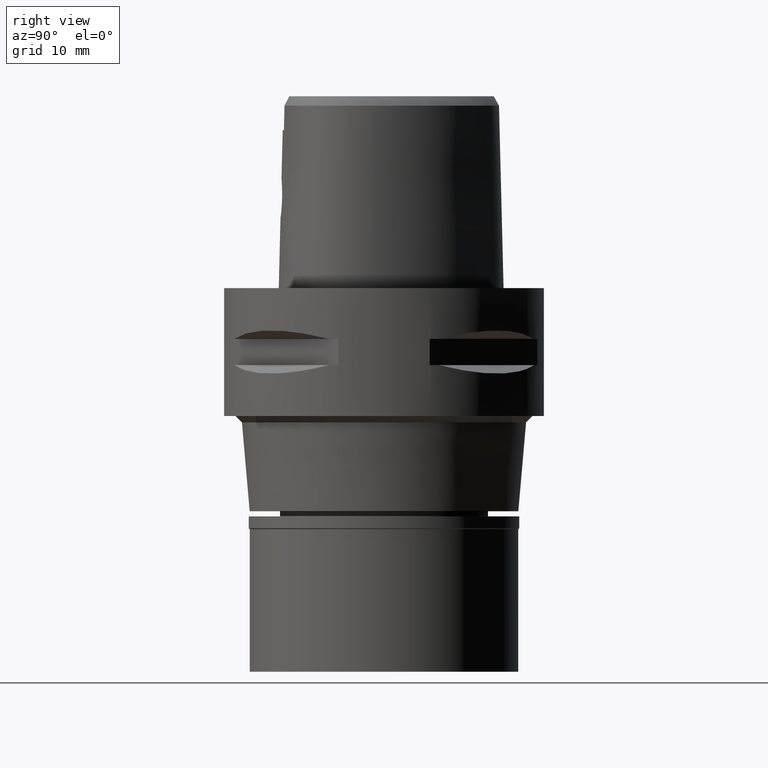
[diagram: clean part render]
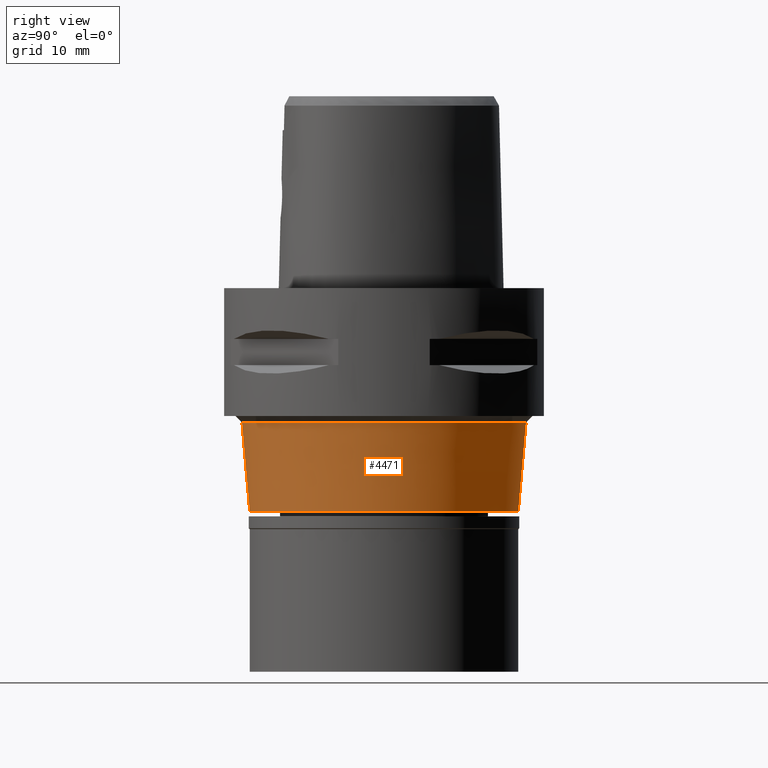
[diagram: same view with one face highlighted and labeled with its STEP entity id]
A machine part, right view. The second image highlights one B-rep face of the part: STEP entity #4471.
In plain terms, the highlighted conical surface has half-angle 5 deg.
Its self-contained STEP definition (entity closure, byte-faithful):
#127 = AXIS2_PLACEMENT_3D ( 'NONE', #736, #711, #1117 ) ;
#134 = VECTOR ( 'NONE', #507, 1000.000000000000000 ) ;
#185 = EDGE_CURVE ( 'NONE', #3035, #1810, #4593, .T. ) ;
#192 = FACE_OUTER_BOUND ( 'NONE', #2493, .T. ) ;
#325 = CARTESIAN_POINT ( 'NONE',  ( 0.0000000000000000000, 22.21609242301000009, -21.00000000000000000 ) ) ;
#326 = CONICAL_SURFACE ( 'NONE', #3574, 21.60804621151000404, 0.08726646259969973729 ) ;
#328 = ORIENTED_EDGE ( 'NONE', *, *, #3563, .T. ) ;
#432 = EDGE_CURVE ( 'NONE', #4290, #1810, #3650, .T. ) ;
#438 = VECTOR ( 'NONE', #1048, 1000.000000000000000 ) ;
#507 = DIRECTION ( 'NONE',  ( 0.0000000000000000000, 0.08715574274758577933, -0.9961946980917518735 ) ) ;
#659 = CARTESIAN_POINT ( 'NONE',  ( 0.0000000000000000000, 21.00000000000000000, -34.89999999999999858 ) ) ;
#711 = DIRECTION ( 'NONE',  ( 0.0000000000000000000, 0.0000000000000000000, 1.000000000000000000 ) ) ;
#736 = CARTESIAN_POINT ( 'NONE',  ( 0.0000000000000000000, 0.0000000000000000000, -21.00000000000000000 ) ) ;
#857 = DIRECTION ( 'NONE',  ( 0.0000000000000000000, 0.0000000000000000000, 1.000000000000000000 ) ) ;
#868 = CARTESIAN_POINT ( 'NONE',  ( 0.0000000000000000000, -22.21609242301000009, -21.00000000000000000 ) ) ;
#903 = CARTESIAN_POINT ( 'NONE',  ( 0.0000000000000000000, 0.0000000000000000000, -34.89999999999999858 ) ) ;
#949 = EDGE_CURVE ( 'NONE', #3592, #4290, #2918, .T. ) ;
#1048 = DIRECTION ( 'NONE',  ( 0.0000000000000000000, -0.08715574274758577933, -0.9961946980917518735 ) ) ;
#1117 = DIRECTION ( 'NONE',  ( 0.0000000000000000000, -1.000000000000000000, 0.0000000000000000000 ) ) ;
#1313 = ORIENTED_EDGE ( 'NONE', *, *, #949, .F. ) ;
#1595 = DIRECTION ( 'NONE',  ( 0.0000000000000000000, -1.000000000000000000, 0.0000000000000000000 ) ) ;
#1790 = ORIENTED_EDGE ( 'NONE', *, *, #185, .T. ) ;
#1810 = VERTEX_POINT ( 'NONE', #659 ) ;
#2380 = CARTESIAN_POINT ( 'NONE',  ( 0.0000000000000000000, -22.21609242301000009, -21.00000000000000000 ) ) ;
#2493 = EDGE_LOOP ( 'NONE', ( #1313, #328, #1790, #2547 ) ) ;
#2547 = ORIENTED_EDGE ( 'NONE', *, *, #432, .F. ) ;
#2918 = CIRCLE ( 'NONE', #127, 22.21609242302000098 ) ;
#3035 = VERTEX_POINT ( 'NONE', #4674 ) ;
#3563 = EDGE_CURVE ( 'NONE', #3592, #3035, #4180, .T. ) ;
#3574 = AXIS2_PLACEMENT_3D ( 'NONE', #3952, #3591, #3878 ) ;
#3575 = CARTESIAN_POINT ( 'NONE',  ( 0.0000000000000000000, 22.21609242301000009, -21.00000000000000000 ) ) ;
#3591 = DIRECTION ( 'NONE',  ( 0.0000000000000000000, 0.0000000000000000000, 1.000000000000000000 ) ) ;
#3592 = VERTEX_POINT ( 'NONE', #2380 ) ;
#3610 = AXIS2_PLACEMENT_3D ( 'NONE', #903, #857, #1595 ) ;
#3650 = LINE ( 'NONE', #3575, #438 ) ;
#3878 = DIRECTION ( 'NONE',  ( 0.0000000000000000000, 1.000000000000000000, 0.0000000000000000000 ) ) ;
#3952 = CARTESIAN_POINT ( 'NONE',  ( 0.0000000000000000000, 0.0000000000000000000, -27.94999999999999929 ) ) ;
#4180 = LINE ( 'NONE', #868, #134 ) ;
#4290 = VERTEX_POINT ( 'NONE', #325 ) ;
#4471 = ADVANCED_FACE ( 'NONE', ( #192 ), #326, .T. ) ;
#4593 = CIRCLE ( 'NONE', #3610, 21.00000000000000000 ) ;
#4674 = CARTESIAN_POINT ( 'NONE',  ( 0.0000000000000000000, -21.00000000000000000, -34.89999999999999858 ) ) ;